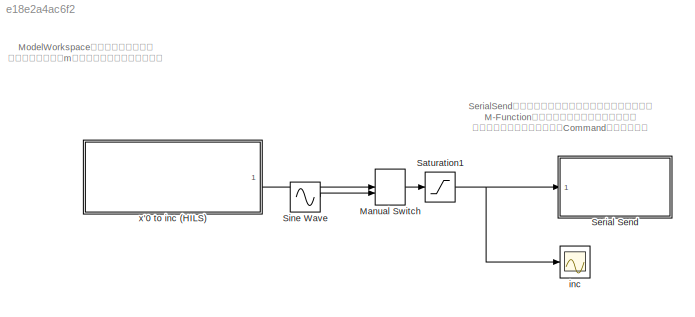
MODEL slx_e18e2a4ac6f2
KIND model
CONFIG AbsTol = auto
CONFIG EnableMultiTasking = off
CONFIG FixedStep = 0.001
CONFIG MaxStep = auto
CONFIG MinStep = auto
CONFIG RelTol = 1e-3
CONFIG SampleTimeConstraint = Unconstrained
CONFIG Solver = ode4
CONFIG SolverName = ode4
CONFIG StartTime = 0.0
CONFIG StopTime = inf
WORKSPACE source: MATLAB code (in-file)
WORKSPACE code: x0toinc_EPOS4_ModelWorkspace;
BLOCK [ManualSwitch] Manual Switch
BLOCK [Saturate] Saturation1
  LowerLimit = 0
  UpperLimit = 47000
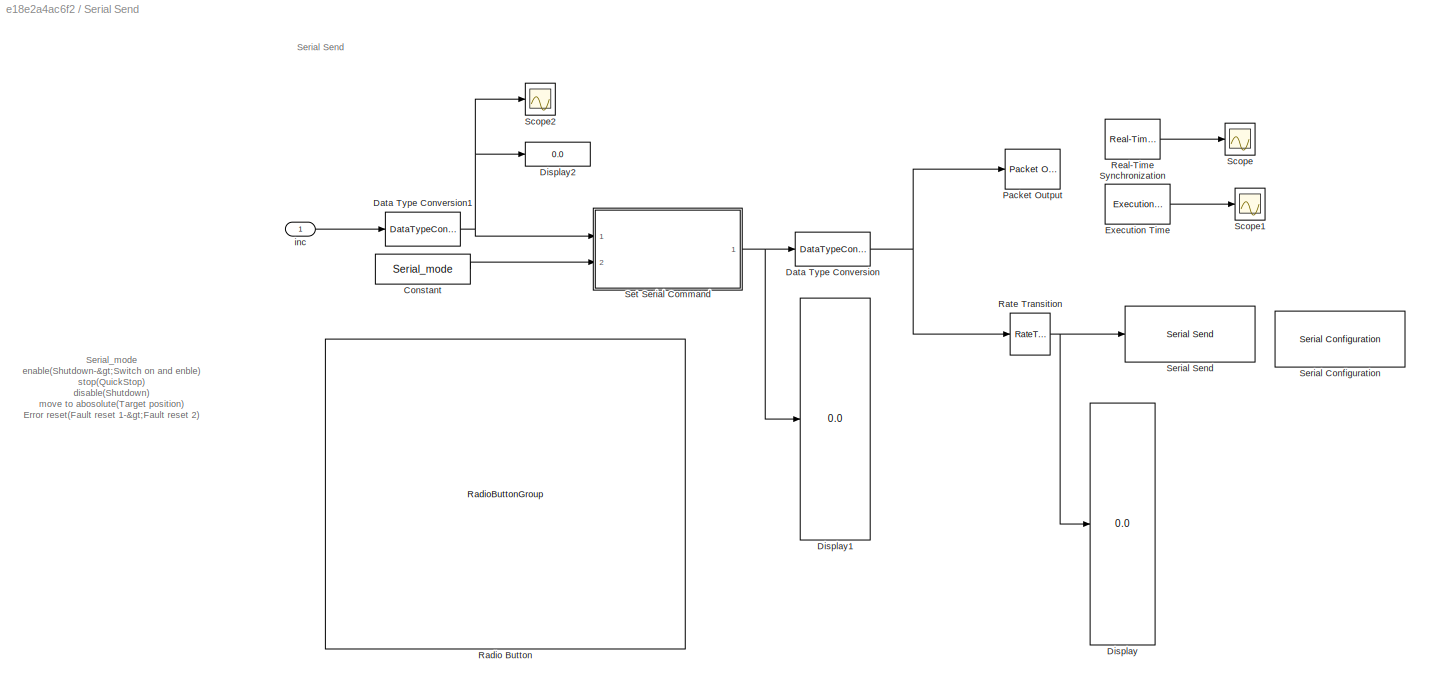
BLOCK [SubSystem] Serial Send
  Ports = [1]
  RequestExecContextInheritance = off
BLOCK [Constant] Serial Send/Constant
  Value = Serial_mode
BLOCK [DataTypeConversion] Serial Send/Data Type Conversion
  OutDataTypeStr = uint8
  RndMeth = Floor
  SaturateOnIntegerOverflow = off
BLOCK [DataTypeConversion] Serial Send/Data Type Conversion1
  OutDataTypeStr = double
  RndMeth = Ceiling
  SaturateOnIntegerOverflow = off
BLOCK [Display] Serial Send/Display
  Decimation = 1
  Ports = [1]
BLOCK [Display] Serial Send/Display1
  Decimation = 1
  Format = long
  Ports = [1]
BLOCK [Display] Serial Send/Display2
  Decimation = 1
  Format = long
  Ports = [1]
BLOCK [Reference] Serial Send/Execution Time  REF=sldrtlib/Target Profiling/Execution Time
  Ports = [0, 1]
  SourceBlock = sldrtlib/Target Profiling/Execution Time
  SourceProductBaseCode = WT
  SourceType = Simulink Desktop Real-Time Task Execution Time
BLOCK [Reference] Serial Send/Packet Output  REF=sldrtlib/Packet Output
  AttributesFormatString = Serial Port [4]
  Ports = [1]
  SourceBlock = sldrtlib/Packet Output
  SourceProductBaseCode = WT
  SourceType = Simulink Desktop Real-Time Packet Output
BLOCK [RadioButtonGroup] Serial Send/Radio Button
  ButtonGroupName = Serial_mode
  LabelPosition = Hide
  SelectedLabel = Shutdown
BLOCK [RateTransition] Serial Send/Rate Transition
  Commented = through
  OutPortSampleTime = 0.004
BLOCK [Reference] Serial Send/Real-Time Synchronization  REF=sldrtlib/Real-Time
Synchronization
  Ports = [0, 1]
  SourceBlock = sldrtlib/Real-Time\nSynchronization
  SourceProductBaseCode = WT
  SourceType = Simulink Desktop Real-Time Synchronization
BLOCK [Scope] Serial Send/Scope
  Floating = off
  NumInputPorts = 1
  Ports = [1]
  ScopeSpecificationString = Simulink.scopes.TimeScopeBlockCfg('CurrentConfiguration', extmgr.ConfigurationSet(extmgr.Configuration('Core','General UI',true),extmgr.Configuration('Core','Source UI',true),extmgr.Configuration('Sources','WiredSimulink',true,'DataLoggingVariableName','ScopeData1'),extmgr.Configuration('Visuals','Time Domain',true,'SerializedDisplays',{struct('MinYLimReal','-1.00000','MaxYLimReal','1.00000','YLab...<+1439ch>
BLOCK [Scope] Serial Send/Scope1
  Floating = off
  NumInputPorts = 1
  Ports = [1]
  ScopeSpecificationString = Simulink.scopes.TimeScopeBlockCfg('CurrentConfiguration', extmgr.ConfigurationSet(extmgr.Configuration('Core','General UI',true),extmgr.Configuration('Core','Source UI',true),extmgr.Configuration('Sources','WiredSimulink',true,'DataLoggingVariableName','ScopeData2'),extmgr.Configuration('Visuals','Time Domain',true,'SerializedDisplays',{struct('MinYLimReal','-0.000007','MaxYLimReal','0.000066','YL...<+1435ch>
BLOCK [Scope] Serial Send/Scope2
  Floating = off
  NumInputPorts = 1
  Ports = [1]
  ScopeSpecificationString = Simulink.scopes.TimeScopeBlockCfg('CurrentConfiguration', extmgr.ConfigurationSet(extmgr.Configuration('Core','General UI',true),extmgr.Configuration('Core','Source UI',true),extmgr.Configuration('Sources','WiredSimulink',true,'DataLoggingVariableName','ScopeData17'),extmgr.Configuration('Visuals','Time Domain',true,'SerializedDisplays',{struct('MinYLimReal','1074.375','MaxYLimReal','1370.625','YL...<+1442ch>
BLOCK [Reference] Serial Send/Serial Configuration  REF=instrumentlib/Serial Configuration
  Commented = on
  Ports = []
  Priority = -200000
  SourceBlock = instrumentlib/Serial Configuration
  SourceProductBaseCode = IC
  SourceType = Serial Configuration
BLOCK [Reference] Serial Send/Serial Send  REF=instrumentlib/Serial Send
  Commented = on
  Ports = [1]
  SourceBlock = instrumentlib/Serial Send
  SourceProductBaseCode = IC
  SourceType = Serial Send
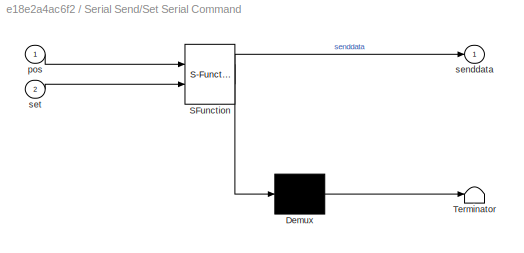
BLOCK [SubSystem] Serial Send/Set Serial Command
  ErrorFcn = Stateflow.Translate.translate
  PermitHierarchicalResolution = ExplicitOnly
  Ports = [2, 1]
  RequestExecContextInheritance = off
  SFBlockType = MATLAB Function
  TreatAsAtomicUnit = on
BLOCK [Demux] Serial Send/Set Serial Command/ Demux 
  Outputs = 1
  Ports = [1, 1]
BLOCK [S-Function] Serial Send/Set Serial Command/ SFunction 
  EnableBusSupport = on
  FunctionName = sf_sfun
  PortCounts = [2 2]
  Ports = [2, 2]
  SFcnIsStateOwnerBlock = off
  SFunctionDeploymentMode = off
  Tag = Stateflow S-Function 4
BLOCK [Terminator] Serial Send/Set Serial Command/ Terminator 
BLOCK [Inport] Serial Send/Set Serial Command/pos
BLOCK [Outport] Serial Send/Set Serial Command/senddata
  VectorParamsAs1DForOutWhenUnconnected = off
BLOCK [Inport] Serial Send/Set Serial Command/set
  Port = 2
BLOCK [Inport] Serial Send/inc
BLOCK [Sin] Sine Wave
  Amplitude = 500
  Bias = 1000
  Ports = [0, 1]
  SampleTime = 0
BLOCK [Scope] inc
  Floating = off
  NumInputPorts = 1
  Ports = [1]
  ScopeSpecificationString = Simulink.scopes.TimeScopeBlockCfg('CurrentConfiguration', extmgr.ConfigurationSet(extmgr.Configuration('Core','General UI',true),extmgr.Configuration('Core','Source UI',true),extmgr.Configuration('Sources','WiredSimulink',true,'DataLoggingVariableName','ScopeData1'),extmgr.Configuration('Visuals','Time Domain',true,'SerializedDisplays',{struct('MinYLimReal','1074.375','MaxYLimReal','1370.625','YLa...<+1449ch>
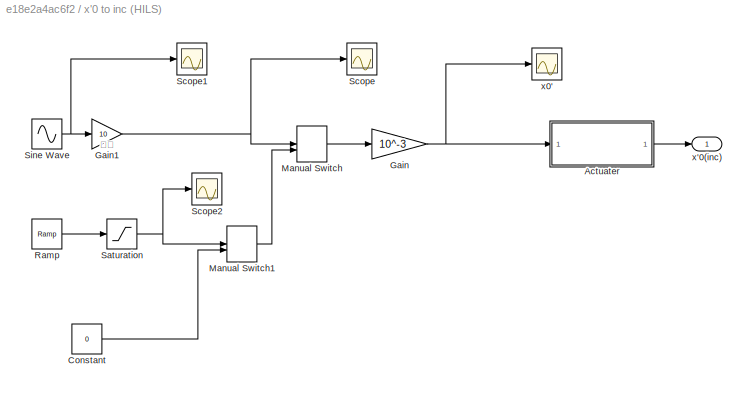
BLOCK [SubSystem] x'0 to inc (HILS)
  Ports = [0, 1]
  RequestExecContextInheritance = off
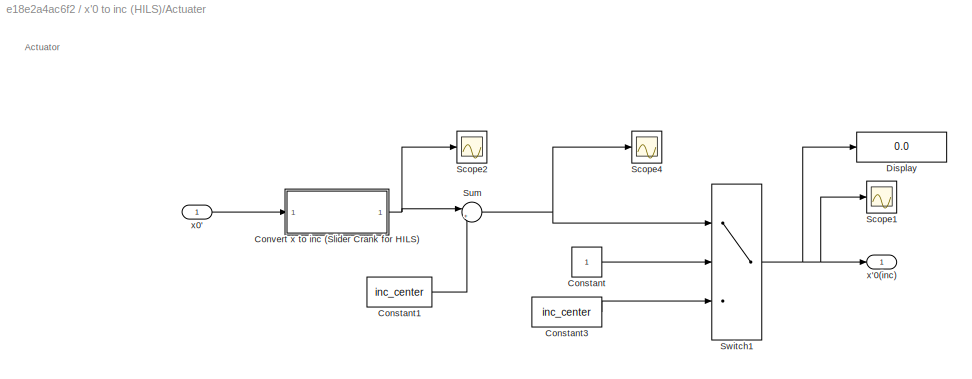
BLOCK [SubSystem] x'0 to inc (HILS)/Actuater
  Ports = [1, 1]
  RequestExecContextInheritance = off
BLOCK [Constant] x'0 to inc (HILS)/Actuater/Constant
BLOCK [Constant] x'0 to inc (HILS)/Actuater/Constant1
  Value = inc_center
BLOCK [Constant] x'0 to inc (HILS)/Actuater/Constant3
  Value = inc_center
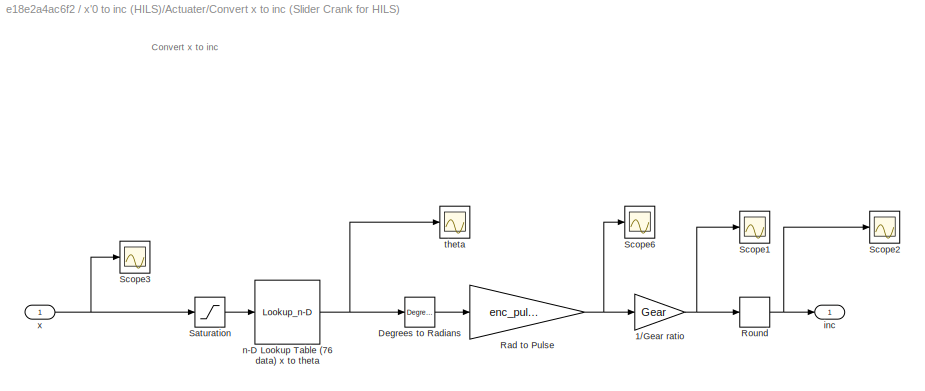
BLOCK [SubSystem] x'0 to inc (HILS)/Actuater/Convert x to inc (Slider Crank for HILS)
  Ports = [1, 1]
  RequestExecContextInheritance = off
BLOCK [Gain] x'0 to inc (HILS)/Actuater/Convert x to inc (Slider Crank for HILS)/1//Gear ratio
  Gain = Gear
BLOCK [Reference] x'0 to inc (HILS)/Actuater/Convert x to inc (Slider Crank for HILS)/Degrees to Radians  REF=simulink_extras/Transformations/Degrees to
Radians
  Ports = [1, 1]
  SourceBlock = simulink_extras/Transformations/Degrees to\nRadians
  SourceProductBaseCode = SL
  SourceType = DegreesToRadians
BLOCK [Gain] x'0 to inc (HILS)/Actuater/Convert x to inc (Slider Crank for HILS)/Rad to Pulse
  Gain = enc_pulse*4/(2*pi)
BLOCK [Rounding] x'0 to inc (HILS)/Actuater/Convert x to inc (Slider Crank for HILS)/Round
  Operator = round
BLOCK [Saturate] x'0 to inc (HILS)/Actuater/Convert x to inc (Slider Crank for HILS)/Saturation
  LowerLimit = -0.03
  UpperLimit = 0.03
BLOCK [Scope] x'0 to inc (HILS)/Actuater/Convert x to inc (Slider Crank for HILS)/Scope1
  Floating = off
  NumInputPorts = 1
  Ports = [1]
  ScopeSpecificationString = Simulink.scopes.TimeScopeBlockCfg('CurrentConfiguration', extmgr.ConfigurationSet(extmgr.Configuration('Core','General UI',true),extmgr.Configuration('Core','Source UI',true),extmgr.Configuration('Sources','WiredSimulink',true,'DataLoggingVariableName','ScopeData2'),extmgr.Configuration('Visuals','Time Domain',true,'SerializedDisplays',{struct('MinYLimReal','74.40584','MaxYLimReal','370.19816','YL...<+1406ch>
BLOCK [Scope] x'0 to inc (HILS)/Actuater/Convert x to inc (Slider Crank for HILS)/Scope2
  Floating = off
  NumInputPorts = 1
  Ports = [1]
  ScopeSpecificationString = Simulink.scopes.TimeScopeBlockCfg('CurrentConfiguration', extmgr.ConfigurationSet(extmgr.Configuration('Core','General UI',true),extmgr.Configuration('Core','Source UI',true),extmgr.Configuration('Sources','WiredSimulink',true,'DataLoggingVariableName','ScopeData3'),extmgr.Configuration('Visuals','Time Domain',true,'SerializedDisplays',{struct('MinYLimReal','74.375','MaxYLimReal','370.625','YLabel...<+1411ch>
BLOCK [Scope] x'0 to inc (HILS)/Actuater/Convert x to inc (Slider Crank for HILS)/Scope3
  Floating = off
  NumInputPorts = 1
  Ports = [1]
  ScopeSpecificationString = Simulink.scopes.TimeScopeBlockCfg('CurrentConfiguration', extmgr.ConfigurationSet(extmgr.Configuration('Core','General UI',true),extmgr.Configuration('Core','Source UI',true),extmgr.Configuration('Sources','WiredSimulink',true,'DataLoggingVariableName','ScopeData4'),extmgr.Configuration('Visuals','Time Domain',true,'SerializedDisplays',{struct('MinYLimReal','-0.0125','MaxYLimReal','0.0125','YLabel...<+1379ch>
BLOCK [Scope] x'0 to inc (HILS)/Actuater/Convert x to inc (Slider Crank for HILS)/Scope6
  Floating = off
  NumInputPorts = 1
  Ports = [1]
  ScopeSpecificationString = Simulink.scopes.TimeScopeBlockCfg('CurrentConfiguration', extmgr.ConfigurationSet(extmgr.Configuration('Core','General UI',true),extmgr.Configuration('Core','Source UI',true),extmgr.Configuration('Sources','WiredSimulink',true,'DataLoggingVariableName','ScopeData7'),extmgr.Configuration('Visuals','Time Domain',true,'SerializedDisplays',{struct('MinYLimReal','74.40584','MaxYLimReal','370.19816','YL...<+1435ch>
BLOCK [Outport] x'0 to inc (HILS)/Actuater/Convert x to inc (Slider Crank for HILS)/inc
  VectorParamsAs1DForOutWhenUnconnected = off
BLOCK [Lookup_n-D] x'0 to inc (HILS)/Actuater/Convert x to inc (Slider Crank for HILS)/n-D Lookup Table (76 data) x to theta
  BreakpointsForDimension1 = [-0.0306093330479605\n-0.0298607961151376\n-0.0291025282464357\n-0.0283346628578736\n-0.0275573426690830\n-0.0267707198475020\n-0.0259749561376706\n-0.0251702229748870\n-0.0243567015825286\n-0.0235345830523965\n-0.0227040684074941\n-0.0218653686467141\n-0.0210187047709721\n-0.0201643077903933\n-0.0193024187122293\n-0.0184332885092591\n-0.0175571780685010\n-0.0166743581201432\n-0.0157851091466777\n-0.0148897212723015...<+1085ch>
  BreakpointsForDimension3 = [5, 7]
  ExtrapMethod = Cubic spline
  InternalRulePriority = Speed
  InterpMethod = Cubic spline
  NumberOfTableDimensions = 1
  Ports = [1, 1]
  RndMeth = Simplest
  Table = [-15\n-14\n-13\n-12\n-11\n-10\n-9\n-8\n-7\n-6\n-5\n-4\n-3\n-2\n-1\n0\n1\n2\n3\n4\n5\n6\n7\n8\n9\n10\n11\n12\n13\n14\n15\n16\n17\n18\n19\n20\n21\n22\n23\n24\n25\n26\n27\n28\n29\n30\n31\n32\n33\n34\n35\n36\n37\n38\n39\n40\n41\n42\n43\n44\n45\n46\n47\n48\n49\n50\n51\n52\n53\n54\n55\n56\n57\n58\n59\n60]
BLOCK [Scope] x'0 to inc (HILS)/Actuater/Convert x to inc (Slider Crank for HILS)/theta
  Floating = off
  NumInputPorts = 1
  Ports = [1]
  ScopeSpecificationString = Simulink.scopes.TimeScopeBlockCfg('CurrentConfiguration', extmgr.ConfigurationSet(extmgr.Configuration('Core','General UI',true),extmgr.Configuration('Core','Source UI',true),extmgr.Configuration('Sources','WiredSimulink',true,'DataLoggingVariableName','ScopeData5'),extmgr.Configuration('Visuals','Time Domain',true,'SerializedDisplays',{struct('MinYLimReal','6.69653','MaxYLimReal','33.31783','YLab...<+1452ch>
BLOCK [Inport] x'0 to inc (HILS)/Actuater/Convert x to inc (Slider Crank for HILS)/x
BLOCK [Display] x'0 to inc (HILS)/Actuater/Display
  Decimation = 1
  Ports = [1]
BLOCK [Scope] x'0 to inc (HILS)/Actuater/Scope1
  Floating = off
  NumInputPorts = 1
  Ports = [1]
  ScopeSpecificationString = Simulink.scopes.TimeScopeBlockCfg('CurrentConfiguration', extmgr.ConfigurationSet(extmgr.Configuration('Core','General UI',true),extmgr.Configuration('Core','Source UI',true),extmgr.Configuration('Sources','WiredSimulink',true,'DataLoggingVariableName','ScopeData4'),extmgr.Configuration('Visuals','Time Domain',true,'SerializedDisplays',{struct('MinYLimReal','13727.25','MaxYLimReal','15384.75','YLa...<+1445ch>
BLOCK [Scope] x'0 to inc (HILS)/Actuater/Scope2
  Floating = off
  NumInputPorts = 1
  Ports = [1]
  ScopeSpecificationString = Simulink.scopes.TimeScopeBlockCfg('CurrentConfiguration', extmgr.ConfigurationSet(extmgr.Configuration('Core','General UI',true),extmgr.Configuration('Core','Source UI',true),extmgr.Configuration('Sources','WiredSimulink',true,'DataLoggingVariableName','ScopeData1'),extmgr.Configuration('Visuals','Time Domain',true,'SerializedDisplays',{struct('MinYLimReal','122.00000','MaxYLimReal','322.00000','Y...<+1486ch>
BLOCK [Scope] x'0 to inc (HILS)/Actuater/Scope4
  Floating = off
  NumInputPorts = 1
  Ports = [1]
  ScopeSpecificationString = Simulink.scopes.TimeScopeBlockCfg('CurrentConfiguration', extmgr.ConfigurationSet(extmgr.Configuration('Core','General UI',true),extmgr.Configuration('Core','Source UI',true),extmgr.Configuration('Sources','WiredSimulink',true,'DataLoggingVariableName','ScopeData3'),extmgr.Configuration('Visuals','Time Domain',true,'SerializedDisplays',{struct('MinYLimReal','222.00000','MaxYLimReal','2222.00000','...<+1453ch>
BLOCK [Sum] x'0 to inc (HILS)/Actuater/Sum
  Inputs = |++
  Ports = [2, 1]
BLOCK [Switch] x'0 to inc (HILS)/Actuater/Switch1
  Criteria = u2 > Threshold
  InputSameDT = off
  SaturateOnIntegerOverflow = off
BLOCK [Outport] x'0 to inc (HILS)/Actuater/x'0(inc)
  VectorParamsAs1DForOutWhenUnconnected = off
BLOCK [Inport] x'0 to inc (HILS)/Actuater/x0'
BLOCK [Constant] x'0 to inc (HILS)/Constant
  Value = 0
BLOCK [Gain] x'0 to inc (HILS)/Gain
  Gain = 10^-3
BLOCK [Gain] x'0 to inc (HILS)/Gain1
  Gain = 10
BLOCK [ManualSwitch] x'0 to inc (HILS)/Manual Switch
BLOCK [ManualSwitch] x'0 to inc (HILS)/Manual Switch1
BLOCK [Reference] x'0 to inc (HILS)/Ramp  REF=simulink/Sources/Ramp
  Ports = [0, 1]
  SourceBlock = simulink/Sources/Ramp
  SourceProductBaseCode = SL
  SourceType = Ramp
BLOCK [Saturate] x'0 to inc (HILS)/Saturation
  LowerLimit = 0
  UpperLimit = 2000
BLOCK [Scope] x'0 to inc (HILS)/Scope
  Floating = off
  NumInputPorts = 1
  Ports = [1]
  ScopeSpecificationString = Simulink.scopes.TimeScopeBlockCfg('CurrentConfiguration', extmgr.ConfigurationSet(extmgr.Configuration('Core','General UI',true),extmgr.Configuration('Core','Source UI',true),extmgr.Configuration('Sources','WiredSimulink',true,'DataLoggingVariableName','ScopeData1'),extmgr.Configuration('Visuals','Time Domain',true,'SerializedDisplays',{struct('MinYLimReal','-12.5','MaxYLimReal','12.5','YLabelReal...<+1406ch>
BLOCK [Scope] x'0 to inc (HILS)/Scope1
  Floating = off
  NumInputPorts = 1
  Ports = [1]
  ScopeSpecificationString = Simulink.scopes.TimeScopeBlockCfg('CurrentConfiguration', extmgr.ConfigurationSet(extmgr.Configuration('Core','General UI',true),extmgr.Configuration('Core','Source UI',true),extmgr.Configuration('Sources','WiredSimulink',true,'DataLoggingVariableName','ScopeData2'),extmgr.Configuration('Visuals','Time Domain',true,'SerializedDisplays',{struct('MinYLimReal','-1.25','MaxYLimReal','1.25','YLabelReal...<+1375ch>
BLOCK [Scope] x'0 to inc (HILS)/Scope2
  Floating = off
  NumInputPorts = 1
  Ports = [1]
  ScopeSpecificationString = Simulink.scopes.TimeScopeBlockCfg('CurrentConfiguration', extmgr.ConfigurationSet(extmgr.Configuration('Core','General UI',true),extmgr.Configuration('Core','Source UI',true),extmgr.Configuration('Sources','WiredSimulink',true,'DataLoggingVariableName','ScopeData3'),extmgr.Configuration('Visuals','Time Domain',true,'SerializedDisplays',{struct('MinYLimReal','-1.00000','MaxYLimReal','1.00000','YLab...<+1458ch>
BLOCK [Sin] x'0 to inc (HILS)/Sine Wave
  Frequency = 2*pi*1
  Ports = [0, 1]
  SampleTime = 0
BLOCK [Outport] x'0 to inc (HILS)/x'0(inc)
BLOCK [Scope] x'0 to inc (HILS)/x0'
  Floating = off
  NumInputPorts = 1
  Ports = [1]
  ScopeSpecificationString = Simulink.scopes.TimeScopeBlockCfg('CurrentConfiguration', extmgr.ConfigurationSet(extmgr.Configuration('Core','General UI',true),extmgr.Configuration('Core','Source UI',true),extmgr.Configuration('Sources','WiredSimulink',true,'DataLoggingVariableName','ScopeData2'),extmgr.Configuration('Visuals','Time Domain',true,'SerializedDisplays',{struct('MinYLimReal','-0.0125','MaxYLimReal','0.0125','YLabel...<+1411ch>
ANNOTATION (root): ModelWorkspaceにパラメータを保存 変更したい場合はmファイルを編集し再読み込み
ANNOTATION (root): SerialSend内でシリアル通信のコマンドを切り替え可能 M-Functionをよく読んで内容を理解すること パラメータを変更することでCommandが切り替わる
ANNOTATION Serial Send: Serial_mode enable(Shutdown->Switch on and enble) stop(QuickStop) disable(Shutdown) move to abosolute(Target position) Error reset(Fault reset 1->Fault reset 2)
ANNOTATION Serial Send: Serial Send
ANNOTATION x'0 to inc (HILS): 振幅
ANNOTATION x'0 to inc (HILS)/Actuater: Actuator
ANNOTATION x'0 to inc (HILS)/Actuater/Convert x to inc (Slider Crank for HILS): Convert x to inc
LINE Manual Switch:1 -> Saturation1:1
NET Saturation1:1 -> Serial Send:1, inc:1
LINE Serial Send/Constant:1 -> Serial Send/Set Serial Command:2
NET Serial Send/Data Type Conversion1:1 -> Serial Send/Display2:1, Serial Send/Scope2:1, Serial Send/Set Serial Command:1
NET Serial Send/Data Type Conversion:1 -> Serial Send/Packet Output:1, Serial Send/Rate Transition:1
LINE Serial Send/Execution Time:1 -> Serial Send/Scope1:1
NET Serial Send/Rate Transition:1 -> Serial Send/Display:1, Serial Send/Serial Send:1
LINE Serial Send/Real-Time Synchronization:1 -> Serial Send/Scope:1
NET Serial Send/Set Serial Command:1 -> Serial Send/Data Type Conversion:1, Serial Send/Display1:1
LINE Serial Send/inc:1 -> Serial Send/Data Type Conversion1:1
LINE Sine Wave:1 -> Manual Switch:2
LINE x'0 to inc (HILS)/Actuater/Constant1:1 -> x'0 to inc (HILS)/Actuater/Sum:2
LINE x'0 to inc (HILS)/Actuater/Constant3:1 -> x'0 to inc (HILS)/Actuater/Switch1:3
LINE x'0 to inc (HILS)/Actuater/Constant:1 -> x'0 to inc (HILS)/Actuater/Switch1:2
NET x'0 to inc (HILS)/Actuater/Convert x to inc (Slider Crank for HILS)/1//Gear ratio:1 -> x'0 to inc (HILS)/Actuater/Convert x to inc (Slider Crank for HILS)/Round:1, x'0 to inc (HILS)/Actuater/Convert x to inc (Slider Crank for HILS)/Scope1:1
LINE x'0 to inc (HILS)/Actuater/Convert x to inc (Slider Crank for HILS)/Degrees to Radians:1 -> x'0 to inc (HILS)/Actuater/Convert x to inc (Slider Crank for HILS)/Rad to Pulse:1
NET x'0 to inc (HILS)/Actuater/Convert x to inc (Slider Crank for HILS)/Rad to Pulse:1 -> x'0 to inc (HILS)/Actuater/Convert x to inc (Slider Crank for HILS)/1//Gear ratio:1, x'0 to inc (HILS)/Actuater/Convert x to inc (Slider Crank for HILS)/Scope6:1
NET x'0 to inc (HILS)/Actuater/Convert x to inc (Slider Crank for HILS)/Round:1 -> x'0 to inc (HILS)/Actuater/Convert x to inc (Slider Crank for HILS)/Scope2:1, x'0 to inc (HILS)/Actuater/Convert x to inc (Slider Crank for HILS)/inc:1
LINE x'0 to inc (HILS)/Actuater/Convert x to inc (Slider Crank for HILS)/Saturation:1 -> x'0 to inc (HILS)/Actuater/Convert x to inc (Slider Crank for HILS)/n-D Lookup Table (76 data) x to theta:1
NET x'0 to inc (HILS)/Actuater/Convert x to inc (Slider Crank for HILS)/n-D Lookup Table (76 data) x to theta:1 -> x'0 to inc (HILS)/Actuater/Convert x to inc (Slider Crank for HILS)/Degrees to Radians:1, x'0 to inc (HILS)/Actuater/Convert x to inc (Slider Crank for HILS)/theta:1
NET x'0 to inc (HILS)/Actuater/Convert x to inc (Slider Crank for HILS)/x:1 -> x'0 to inc (HILS)/Actuater/Convert x to inc (Slider Crank for HILS)/Saturation:1, x'0 to inc (HILS)/Actuater/Convert x to inc (Slider Crank for HILS)/Scope3:1
NET x'0 to inc (HILS)/Actuater/Convert x to inc (Slider Crank for HILS):1 -> x'0 to inc (HILS)/Actuater/Scope2:1, x'0 to inc (HILS)/Actuater/Sum:1
NET x'0 to inc (HILS)/Actuater/Sum:1 -> x'0 to inc (HILS)/Actuater/Scope4:1, x'0 to inc (HILS)/Actuater/Switch1:1
NET x'0 to inc (HILS)/Actuater/Switch1:1 -> x'0 to inc (HILS)/Actuater/Display:1, x'0 to inc (HILS)/Actuater/Scope1:1, x'0 to inc (HILS)/Actuater/x'0(inc):1
LINE x'0 to inc (HILS)/Actuater/x0':1 -> x'0 to inc (HILS)/Actuater/Convert x to inc (Slider Crank for HILS):1
LINE x'0 to inc (HILS)/Actuater:1 -> x'0 to inc (HILS)/x'0(inc):1
LINE x'0 to inc (HILS)/Constant:1 -> x'0 to inc (HILS)/Manual Switch1:2
NET x'0 to inc (HILS)/Gain1:1 -> x'0 to inc (HILS)/Manual Switch:1, x'0 to inc (HILS)/Scope:1
NET x'0 to inc (HILS)/Gain:1 -> x'0 to inc (HILS)/Actuater:1, x'0 to inc (HILS)/x0':1
LINE x'0 to inc (HILS)/Manual Switch1:1 -> x'0 to inc (HILS)/Manual Switch:2
LINE x'0 to inc (HILS)/Manual Switch:1 -> x'0 to inc (HILS)/Gain:1
LINE x'0 to inc (HILS)/Ramp:1 -> x'0 to inc (HILS)/Saturation:1
NET x'0 to inc (HILS)/Saturation:1 -> x'0 to inc (HILS)/Manual Switch1:1, x'0 to inc (HILS)/Scope2:1
NET x'0 to inc (HILS)/Sine Wave:1 -> x'0 to inc (HILS)/Gain1:1, x'0 to inc (HILS)/Scope1:1
LINE x'0 to inc (HILS):1 -> Manual Switch:1
note: NET lines group one-source signal fan-out (src -> all destinations, sorted); 1:1 wires keep LINE
CHART Serial Send/Set Serial Command states=1 transitions=1
  STATE_LABEL 'eML_blk_kernel()'
  STATE_LABEL "SCRIPT:\nfunction senddata = setSerialCommand(pos,set)\n%Sets the state to switched on and enabled. Releases any Quickstop\n%Build request frame\n\nsenddata = uint16(zeros(14,1));\n\nswitch set\n    case 0\n        senddata = func_sendTargetPosition(pos);\n    case 1\n        Controlword = '0002'; % Quick Stop\n        senddata = setDeviceControlCommands(Controlword);\n    case 2\n        Controlword = '0006'; ...<+3608ch>"
CHART  states=0 transitions=0
